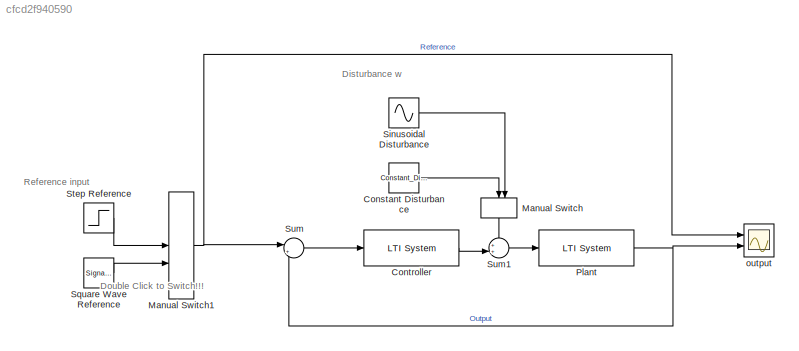
MODEL slx_cfcd2f940590
KIND model
CONFIG AbsTol = auto
CONFIG EnableMultiTasking = off
CONFIG FixedStep = auto
CONFIG MaxStep = auto
CONFIG MinStep = auto
CONFIG RelTol = 1e-3
CONFIG SampleTimeConstraint = Unconstrained
CONFIG SolverName = VariableStepAuto
CONFIG StartTime = 0.0
CONFIG StopTime = 20
BLOCK [Constant] Constant Disturbance
  Value = Constant_Disturbance
BLOCK [Reference] Controller  REF=cstblocks/LTI System
  Ports = [1, 1]
  SourceBlock = cstblocks/LTI System
  SourceType = LTI Block
BLOCK [ManualSwitch] Manual Switch
  NameLocation = left
BLOCK [ManualSwitch] Manual Switch1
BLOCK [Reference] Plant  REF=cstblocks/LTI System
  Ports = [1, 1]
  SourceBlock = cstblocks/LTI System
  SourceType = LTI Block
BLOCK [Sin] Sinusoidal Disturbance
  Amplitude = Sine_Disturbance
  Frequency = Disturbance_Frequency
  Ports = [0, 1]
  SampleTime = 0
BLOCK [SignalGenerator] Square Wave Reference
  Amplitude = Square_Size
  Frequency = Square_Frequency
  Ports = [0, 1]
  Units = rad/sec
  WaveForm = square
BLOCK [Step] Step Reference
  After = Step_Size
  SampleTime = 0
  Time = Step_Time
BLOCK [Sum] Sum
  Inputs = |+-
  Ports = [2, 1]
BLOCK [Sum] Sum1
  Inputs = ++|
  Ports = [2, 1]
BLOCK [Scope] output
  Floating = off
  NumInputPorts = 2
  Ports = [2]
  ScopeSpecificationString = Simulink.scopes.TimeScopeBlockCfg('CurrentConfiguration', extmgr.ConfigurationSet(extmgr.Configuration('Core','General UI',true),extmgr.Configuration('Core','Source UI',true),extmgr.Configuration('Sources','WiredSimulink',true),extmgr.Configuration('Visuals','Time Domain',true,'SerializedDisplays',{struct('MinYLimReal','-6.46841','MaxYLimReal','58.21565','YLabelReal','','MinYLimMag','0.00000','Max...<+1507ch>
ANNOTATION (root): Disturbance w
ANNOTATION (root): Double Click to Switch!!!
ANNOTATION (root): Reference input
LINE Constant Disturbance:1 -> Manual Switch:1
LINE Controller:1 -> Sum1:2
NET Manual Switch1:1 -> Sum:1, output:1
LINE Manual Switch:1 -> Sum1:1
NET Plant:1 -> Sum:2, output:2
LINE Sinusoidal Disturbance:1 -> Manual Switch:2
LINE Square Wave Reference:1 -> Manual Switch1:2
LINE Step Reference:1 -> Manual Switch1:1
LINE Sum1:1 -> Plant:1
LINE Sum:1 -> Controller:1
note: NET lines group one-source signal fan-out (src -> all destinations, sorted); 1:1 wires keep LINE
